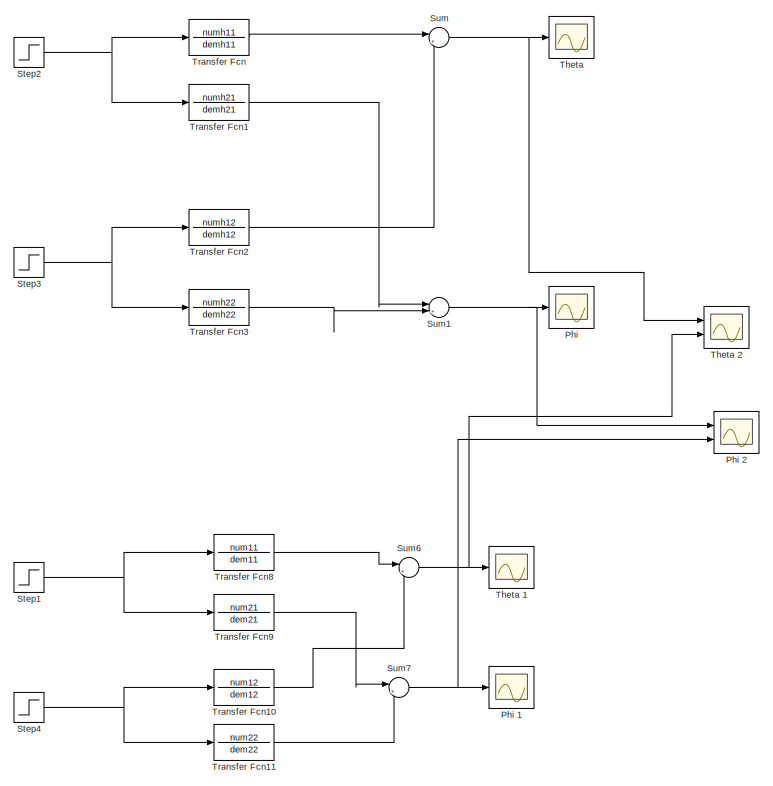
[diagram: root canvas - part 1/2, left side, full height]
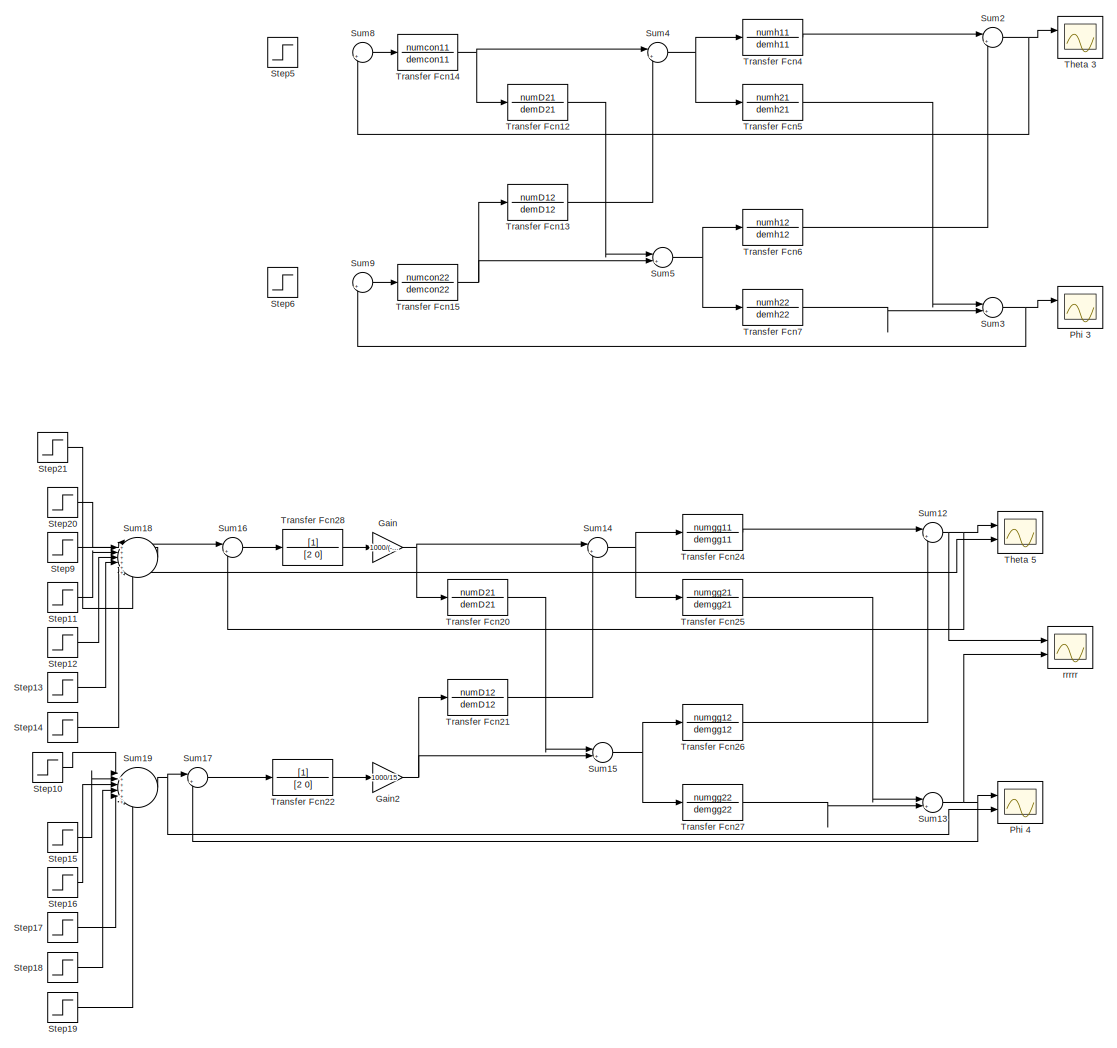
[diagram: root canvas - part 2/2, right side, full height]
MODEL slx_4a3638f5516e
KIND model
CONFIG AbsTol = auto
CONFIG EnableMultiTasking = off
CONFIG FixedStep = auto
CONFIG MaxStep = auto
CONFIG MinStep = auto
CONFIG RelTol = 1e-3
CONFIG SampleTimeConstraint = Unconstrained
CONFIG Solver = VariableStepAuto
CONFIG SolverName = VariableStepAuto
CONFIG StartTime = 0.0
CONFIG StopTime = 100
BLOCK [Gain] Gain
  Gain = 1000/(-12.5)
  OutDataTypeStr = Inherit: Inherit via internal rule
  ParamDataTypeStr = Inherit: Inherit via internal rule
  SaturateOnIntegerOverflow = off
BLOCK [Gain] Gain2
  Gain = 1000/15
  OutDataTypeStr = Inherit: Inherit via internal rule
  ParamDataTypeStr = Inherit: Inherit via internal rule
  SaturateOnIntegerOverflow = off
BLOCK [Scope] Phi 
  Floating = off
  NumInputPorts = 1
  Ports = [1]
  ScopeSpecificationString = Simulink.scopes.TimeScopeBlockCfg('CurrentConfiguration', extmgr.ConfigurationSet(extmgr.Configuration('Core','General UI',true),extmgr.Configuration('Core','Source UI',true),extmgr.Configuration('Sources','WiredSimulink',true,'DataLoggingVariableName','ScopeData2'),extmgr.Configuration('Visuals','Time Domain',true,'SerializedDisplays',{struct('MinYLimReal','-1.62674','MaxYLimReal','0.60114','YLab...<+1411ch>
BLOCK [Scope] Phi 1
  Floating = off
  NumInputPorts = 1
  Ports = [1]
  ScopeSpecificationString = Simulink.scopes.TimeScopeBlockCfg('CurrentConfiguration', extmgr.ConfigurationSet(extmgr.Configuration('Core','General UI',true),extmgr.Configuration('Core','Source UI',true),extmgr.Configuration('Sources','WiredSimulink',true,'DataLoggingVariableName','ScopeData3'),extmgr.Configuration('Visuals','Time Domain',true,'SerializedDisplays',{struct('MinYLimReal','-1.15392','MaxYLimReal','0.17987','YLab...<+1443ch>
BLOCK [Scope] Phi 2
  Floating = off
  NumInputPorts = 2
  Ports = [2]
  ScopeSpecificationString = Simulink.scopes.TimeScopeBlockCfg('CurrentConfiguration', extmgr.ConfigurationSet(extmgr.Configuration('Core','General UI',true),extmgr.Configuration('Core','Source UI',true),extmgr.Configuration('Sources','WiredSimulink',true,'DataLoggingVariableName','ScopeData2'),extmgr.Configuration('Visuals','Time Domain',true,'SerializedDisplays',{struct('MinYLimReal','-1.06212','MaxYLimReal','0.34173','YLab...<+1451ch>
BLOCK [Scope] Phi 3
  Floating = off
  NumInputPorts = 2
  Ports = [2]
  ScopeSpecificationString = Simulink.scopes.TimeScopeBlockCfg('CurrentConfiguration', extmgr.ConfigurationSet(extmgr.Configuration('Core','General UI',true),extmgr.Configuration('Core','Source UI',true),extmgr.Configuration('Sources','WiredSimulink',true,'DataLoggingVariableName','ScopeData4'),extmgr.Configuration('Visuals','Time Domain',true,'SerializedDisplays',{struct('MinYLimReal','-1.45369','MaxYLimReal','13.08318','YLa...<+1462ch>
BLOCK [Scope] Phi 4
  Floating = off
  NumInputPorts = 2
  Ports = [2]
  ScopeSpecificationString = Simulink.scopes.TimeScopeBlockCfg('CurrentConfiguration', extmgr.ConfigurationSet(extmgr.Configuration('Core','General UI',true),extmgr.Configuration('Core','Source UI',true),extmgr.Configuration('Sources','WiredSimulink',true,'DataLoggingVariableName','ScopeData1'),extmgr.Configuration('Visuals','Time Domain',true,'SerializedDisplays',{struct('MinYLimReal','-159.125','MaxYLimReal','22.125','YLabe...<+1453ch>
BLOCK [Step] Step1
  SampleTime = 0
  Time = 0
BLOCK [Step] Step10
  After = 4
  SampleTime = 0
  Time = 0
BLOCK [Step] Step11
  After = 14
  SampleTime = 0
  Time = 30
BLOCK [Step] Step12
  After = -38
  SampleTime = 0
  Time = 45
BLOCK [Step] Step13
  After = 77
  SampleTime = 0
  Time = 60
BLOCK [Step] Step14
  After = -100
  SampleTime = 0
  Time = 75
BLOCK [Step] Step15
  After = -20
  SampleTime = 0
  Time = 10
BLOCK [Step] Step16
  After = -75
  SampleTime = 0
  Time = 20
BLOCK [Step] Step17
  After = 50
  SampleTime = 0
  Time = 40
BLOCK [Step] Step18
  After = -100
  SampleTime = 0
  Time = 60
BLOCK [Step] Step19
  After = 140
  SampleTime = 0
  Time = 85
BLOCK [Step] Step2
  SampleTime = 0
  Time = 0
BLOCK [Step] Step20
  SampleTime = 0
  Time = 0
BLOCK [Step] Step21
  After = 25
  SampleTime = 0
  Time = 90
BLOCK [Step] Step3
  SampleTime = 0
  Time = 0
BLOCK [Step] Step4
  SampleTime = 0
  Time = 0
BLOCK [Step] Step5
  SampleTime = 0
  Time = 0
BLOCK [Step] Step6
  After = 10
  SampleTime = 0
  Time = 0.5
BLOCK [Step] Step9
  After = -6
  SampleTime = 0
  Time = 15
BLOCK [Sum] Sum
  IconShape = round
  InputSameDT = off
  Inputs = |++
  OutDataTypeStr = Inherit: Inherit via internal rule
  Ports = [2, 1]
  SaturateOnIntegerOverflow = off
BLOCK [Sum] Sum1
  IconShape = round
  InputSameDT = off
  Inputs = |++
  OutDataTypeStr = Inherit: Inherit via internal rule
  Ports = [2, 1]
  SaturateOnIntegerOverflow = off
BLOCK [Sum] Sum12
  IconShape = round
  InputSameDT = off
  Inputs = |++
  OutDataTypeStr = Inherit: Inherit via internal rule
  Ports = [2, 1]
  SaturateOnIntegerOverflow = off
BLOCK [Sum] Sum13
  IconShape = round
  InputSameDT = off
  Inputs = |++
  OutDataTypeStr = Inherit: Inherit via internal rule
  Ports = [2, 1]
  SaturateOnIntegerOverflow = off
BLOCK [Sum] Sum14
  IconShape = round
  InputSameDT = off
  Inputs = |++
  OutDataTypeStr = Inherit: Inherit via internal rule
  Ports = [2, 1]
  SaturateOnIntegerOverflow = off
BLOCK [Sum] Sum15
  IconShape = round
  InputSameDT = off
  Inputs = |++
  OutDataTypeStr = Inherit: Inherit via internal rule
  Ports = [2, 1]
  SaturateOnIntegerOverflow = off
BLOCK [Sum] Sum16
  IconShape = round
  InputSameDT = off
  Inputs = |+-
  OutDataTypeStr = Inherit: Inherit via internal rule
  Ports = [2, 1]
  SaturateOnIntegerOverflow = off
BLOCK [Sum] Sum17
  IconShape = round
  InputSameDT = off
  Inputs = |+-
  OutDataTypeStr = Inherit: Inherit via internal rule
  Ports = [2, 1]
  SaturateOnIntegerOverflow = off
BLOCK [Sum] Sum18
  IconShape = round
  InputSameDT = off
  Inputs = |+++++++
  OutDataTypeStr = Inherit: Inherit via internal rule
  Ports = [7, 1]
  SaturateOnIntegerOverflow = off
BLOCK [Sum] Sum19
  IconShape = round
  InputSameDT = off
  Inputs = |++++++
  OutDataTypeStr = Inherit: Inherit via internal rule
  Ports = [6, 1]
  SaturateOnIntegerOverflow = off
BLOCK [Sum] Sum2
  IconShape = round
  InputSameDT = off
  Inputs = |++
  OutDataTypeStr = Inherit: Inherit via internal rule
  Ports = [2, 1]
  SaturateOnIntegerOverflow = off
BLOCK [Sum] Sum3
  IconShape = round
  InputSameDT = off
  Inputs = |++
  OutDataTypeStr = Inherit: Inherit via internal rule
  Ports = [2, 1]
  SaturateOnIntegerOverflow = off
BLOCK [Sum] Sum4
  IconShape = round
  InputSameDT = off
  Inputs = |++
  OutDataTypeStr = Inherit: Inherit via internal rule
  Ports = [2, 1]
  SaturateOnIntegerOverflow = off
BLOCK [Sum] Sum5
  IconShape = round
  InputSameDT = off
  Inputs = |++
  OutDataTypeStr = Inherit: Inherit via internal rule
  Ports = [2, 1]
  SaturateOnIntegerOverflow = off
BLOCK [Sum] Sum6
  IconShape = round
  InputSameDT = off
  Inputs = |++
  OutDataTypeStr = Inherit: Inherit via internal rule
  Ports = [2, 1]
  SaturateOnIntegerOverflow = off
BLOCK [Sum] Sum7
  IconShape = round
  InputSameDT = off
  Inputs = |++
  OutDataTypeStr = Inherit: Inherit via internal rule
  Ports = [2, 1]
  SaturateOnIntegerOverflow = off
BLOCK [Sum] Sum8
  IconShape = round
  InputSameDT = off
  Inputs = |+-
  OutDataTypeStr = Inherit: Inherit via internal rule
  Ports = [2, 1]
  SaturateOnIntegerOverflow = off
BLOCK [Sum] Sum9
  IconShape = round
  InputSameDT = off
  Inputs = |+-
  OutDataTypeStr = Inherit: Inherit via internal rule
  Ports = [2, 1]
  SaturateOnIntegerOverflow = off
BLOCK [Scope] Theta 
  Floating = off
  NumInputPorts = 1
  Ports = [1]
  ScopeSpecificationString = Simulink.scopes.TimeScopeBlockCfg('CurrentConfiguration', extmgr.ConfigurationSet(extmgr.Configuration('Core','General UI',true),extmgr.Configuration('Core','Source UI',true),extmgr.Configuration('Sources','WiredSimulink',true,'DataLoggingVariableName','ScopeData1'),extmgr.Configuration('Visuals','Time Domain',true,'SerializedDisplays',{struct('MinYLimReal','-0.49345','MaxYLimReal','1.20825','YLab...<+1393ch>
BLOCK [Scope] Theta 1
  Floating = off
  NumInputPorts = 1
  Ports = [1]
  ScopeSpecificationString = Simulink.scopes.TimeScopeBlockCfg('CurrentConfiguration', extmgr.ConfigurationSet(extmgr.Configuration('Core','General UI',true),extmgr.Configuration('Core','Source UI',true),extmgr.Configuration('Sources','WiredSimulink',true),extmgr.Configuration('Visuals','Time Domain',true,'SerializedDisplays',{struct('MinYLimReal','-0.51716','MaxYLimReal','1.21208','YLabelReal','','MinYLimMag','0.00000','MaxY...<+1385ch>
BLOCK [Scope] Theta 2
  Floating = off
  NumInputPorts = 2
  Ports = [2]
  ScopeSpecificationString = Simulink.scopes.TimeScopeBlockCfg('CurrentConfiguration', extmgr.ConfigurationSet(extmgr.Configuration('Core','General UI',true),extmgr.Configuration('Core','Source UI',true),extmgr.Configuration('Sources','WiredSimulink',true,'DataLoggingVariableName','ScopeData1'),extmgr.Configuration('Visuals','Time Domain',true,'SerializedDisplays',{struct('MinYLimReal','-0.51759','MaxYLimReal','1.21183','YLab...<+1404ch>
BLOCK [Scope] Theta 3
  Floating = off
  NumInputPorts = 2
  Ports = [2]
  ScopeSpecificationString = Simulink.scopes.TimeScopeBlockCfg('CurrentConfiguration', extmgr.ConfigurationSet(extmgr.Configuration('Core','General UI',true),extmgr.Configuration('Core','Source UI',true),extmgr.Configuration('Sources','WiredSimulink',true,'DataLoggingVariableName','ScopeData3'),extmgr.Configuration('Visuals','Time Domain',true,'SerializedDisplays',{struct('MinYLimReal','-1.00000','MaxYLimReal','1.00000','YLab...<+1410ch>
BLOCK [Scope] Theta 5
  Floating = off
  NumInputPorts = 2
  Ports = [2]
  ScopeSpecificationString = Simulink.scopes.TimeScopeBlockCfg('CurrentConfiguration', extmgr.ConfigurationSet(extmgr.Configuration('Core','General UI',true),extmgr.Configuration('Core','Source UI',true),extmgr.Configuration('Sources','WiredSimulink',true,'DataLoggingVariableName','ScopeData2'),extmgr.Configuration('Visuals','Time Domain',true,'SerializedDisplays',{struct('MinYLimReal','-64.86738','MaxYLimReal','61.60024','YL...<+1461ch>
BLOCK [TransferFcn] Transfer Fcn
  Denominator = demh11
  Numerator = numh11
BLOCK [TransferFcn] Transfer Fcn1
  Denominator = demh21
  Numerator = numh21
BLOCK [TransferFcn] Transfer Fcn10
  Denominator = dem12
  Numerator = num12
BLOCK [TransferFcn] Transfer Fcn11
  Denominator = dem22
  Numerator = num22
BLOCK [TransferFcn] Transfer Fcn12
  Denominator = demD21
  Numerator = numD21
BLOCK [TransferFcn] Transfer Fcn13
  Denominator = demD12
  Numerator = numD12
BLOCK [TransferFcn] Transfer Fcn14
  Denominator = demcon11
  Numerator = numcon11
BLOCK [TransferFcn] Transfer Fcn15
  Denominator = demcon22
  Numerator = numcon22
BLOCK [TransferFcn] Transfer Fcn2
  Denominator = demh12
  Numerator = numh12
BLOCK [TransferFcn] Transfer Fcn20
  Denominator = demD21
  Numerator = numD21
BLOCK [TransferFcn] Transfer Fcn21
  Denominator = demD12
  Numerator = numD12
BLOCK [TransferFcn] Transfer Fcn22
  Denominator = [2 0]
BLOCK [TransferFcn] Transfer Fcn24
  Denominator = demgg11
  Numerator = numgg11
BLOCK [TransferFcn] Transfer Fcn25
  Denominator = demgg21
  Numerator = numgg21
BLOCK [TransferFcn] Transfer Fcn26
  Denominator = demgg12
  Numerator = numgg12
BLOCK [TransferFcn] Transfer Fcn27
  Denominator = demgg22
  Numerator = numgg22
BLOCK [TransferFcn] Transfer Fcn28
  Denominator = [2 0]
BLOCK [TransferFcn] Transfer Fcn3
  Denominator = demh22
  Numerator = numh22
BLOCK [TransferFcn] Transfer Fcn4
  Denominator = demh11
  Numerator = numh11
BLOCK [TransferFcn] Transfer Fcn5
  Denominator = demh21
  Numerator = numh21
BLOCK [TransferFcn] Transfer Fcn6
  Denominator = demh12
  Numerator = numh12
BLOCK [TransferFcn] Transfer Fcn7
  Denominator = demh22
  Numerator = numh22
BLOCK [TransferFcn] Transfer Fcn8
  Denominator = dem11
  Numerator = num11
BLOCK [TransferFcn] Transfer Fcn9
  Denominator = dem21
  Numerator = num21
BLOCK [Scope] rrrrr 
  Floating = off
  NumInputPorts = 2
  Ports = [2]
  ScopeSpecificationString = Simulink.scopes.TimeScopeBlockCfg('CurrentConfiguration', extmgr.ConfigurationSet(extmgr.Configuration('Core','General UI',true),extmgr.Configuration('Core','Source UI',true),extmgr.Configuration('Sources','WiredSimulink',true,'DataLoggingVariableName','ScopeData1'),extmgr.Configuration('Visuals','Time Domain',true,'SerializedDisplays',{struct('MinYLimReal','-0.23748','MaxYLimReal','1.18372','YLab...<+1455ch>
NET Gain2:1 -> Sum15:2, Transfer Fcn21:1
NET Gain:1 -> Sum14:1, Transfer Fcn20:1
LINE Step10:1 -> Sum19:1
LINE Step11:1 -> Sum18:3
LINE Step12:1 -> Sum18:4
LINE Step13:1 -> Sum18:5
LINE Step14:1 -> Sum18:6
LINE Step15:1 -> Sum19:2
LINE Step16:1 -> Sum19:3
LINE Step17:1 -> Sum19:5
LINE Step18:1 -> Sum19:4
LINE Step19:1 -> Sum19:6
NET Step1:1 -> Transfer Fcn8:1, Transfer Fcn9:1
LINE Step20:1 -> Sum18:2
LINE Step21:1 -> Sum18:7
NET Step2:1 -> Transfer Fcn1:1, Transfer Fcn:1
NET Step3:1 -> Transfer Fcn2:1, Transfer Fcn3:1
NET Step4:1 -> Transfer Fcn10:1, Transfer Fcn11:1
LINE Step9:1 -> Sum18:1
NET Sum12:1 -> Sum16:2, Theta 5:1, rrrrr :1
NET Sum13:1 -> Phi 4:1, Sum17:2, rrrrr :2
NET Sum14:1 -> Transfer Fcn24:1, Transfer Fcn25:1
NET Sum15:1 -> Transfer Fcn26:1, Transfer Fcn27:1
LINE Sum16:1 -> Transfer Fcn28:1
LINE Sum17:1 -> Transfer Fcn22:1
NET Sum18:1 -> Sum16:1, Theta 5:2
NET Sum19:1 -> Phi 4:2, Sum17:1
NET Sum1:1 -> Phi 2:1, Phi :1
NET Sum2:1 -> Sum8:2, Theta 3:1
NET Sum3:1 -> Phi 3:1, Sum9:2
NET Sum4:1 -> Transfer Fcn4:1, Transfer Fcn5:1
NET Sum5:1 -> Transfer Fcn6:1, Transfer Fcn7:1
NET Sum6:1 -> Theta 1:1, Theta 2:2
NET Sum7:1 -> Phi 1:1, Phi 2:2
LINE Sum8:1 -> Transfer Fcn14:1
LINE Sum9:1 -> Transfer Fcn15:1
NET Sum:1 -> Theta 2:1, Theta :1
LINE Transfer Fcn10:1 -> Sum6:2
LINE Transfer Fcn11:1 -> Sum7:2
LINE Transfer Fcn12:1 -> Sum5:1
LINE Transfer Fcn13:1 -> Sum4:2
NET Transfer Fcn14:1 -> Sum4:1, Transfer Fcn12:1
NET Transfer Fcn15:1 -> Sum5:2, Transfer Fcn13:1
LINE Transfer Fcn1:1 -> Sum1:1
LINE Transfer Fcn20:1 -> Sum15:1
LINE Transfer Fcn21:1 -> Sum14:2
LINE Transfer Fcn22:1 -> Gain2:1
LINE Transfer Fcn24:1 -> Sum12:1
LINE Transfer Fcn25:1 -> Sum13:1
LINE Transfer Fcn26:1 -> Sum12:2
LINE Transfer Fcn27:1 -> Sum13:2
LINE Transfer Fcn28:1 -> Gain:1
LINE Transfer Fcn2:1 -> Sum:2
LINE Transfer Fcn3:1 -> Sum1:2
LINE Transfer Fcn4:1 -> Sum2:1
LINE Transfer Fcn5:1 -> Sum3:1
LINE Transfer Fcn6:1 -> Sum2:2
LINE Transfer Fcn7:1 -> Sum3:2
LINE Transfer Fcn8:1 -> Sum6:1
LINE Transfer Fcn9:1 -> Sum7:1
LINE Transfer Fcn:1 -> Sum:1
note: NET lines group one-source signal fan-out (src -> all destinations, sorted); 1:1 wires keep LINE
